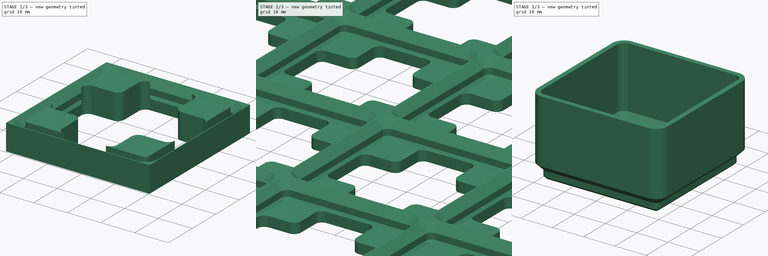
[diagram: build sequence overview — one tinted view per stage of 3, left to right]
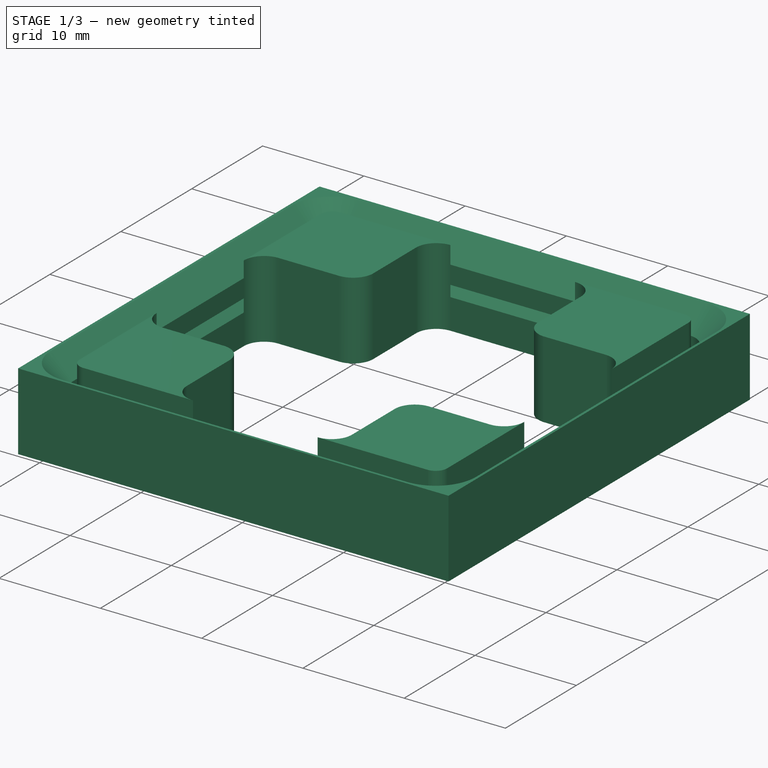
[diagram: stage 1 of 3 — iso view after this stage's code; geometry added in this stage tinted green]
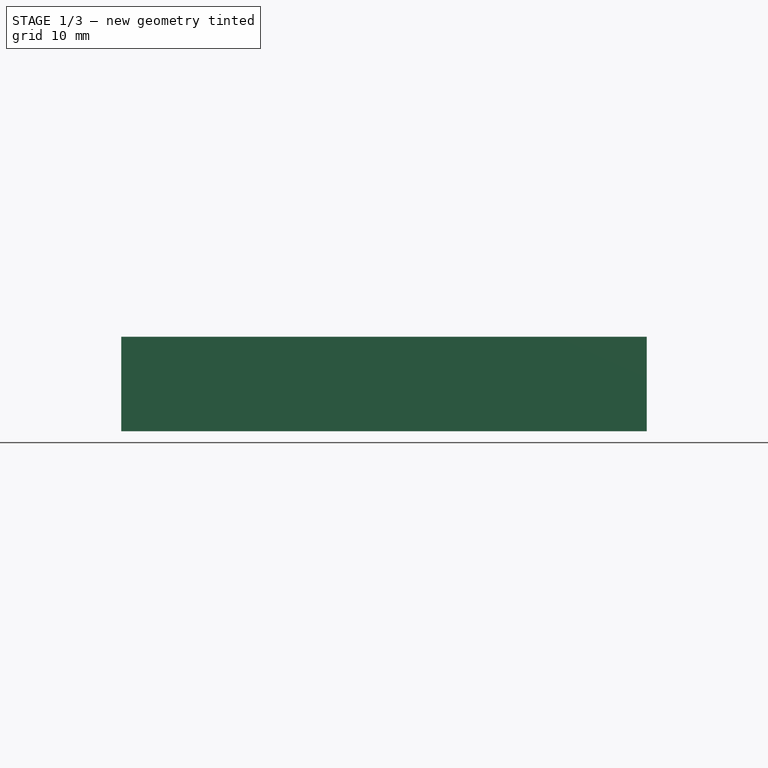
[diagram: stage 1 of 3 — front view after this stage's code; geometry added in this stage tinted green]
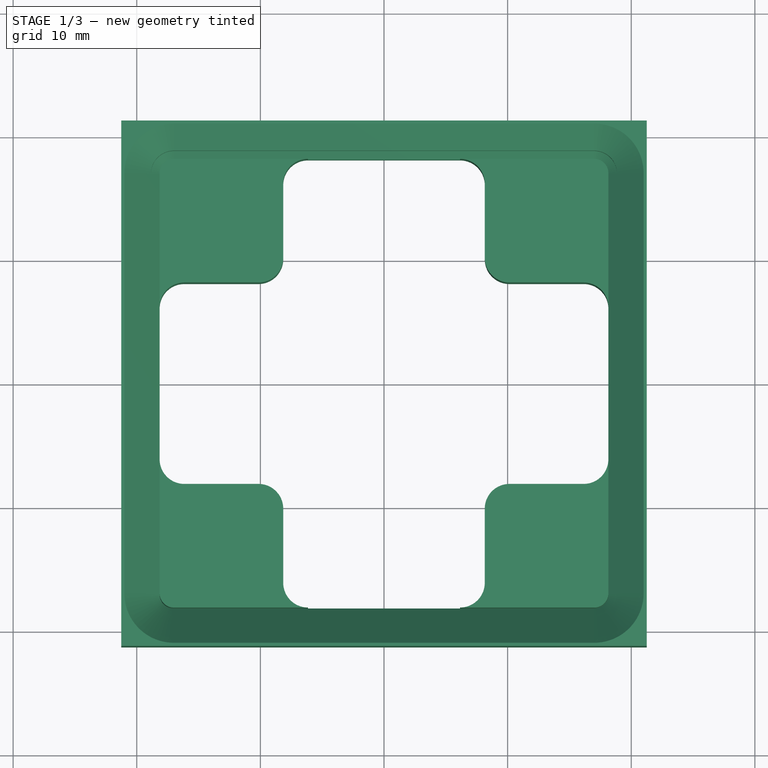
[diagram: stage 1 of 3 — top view after this stage's code; geometry added in this stage tinted green]
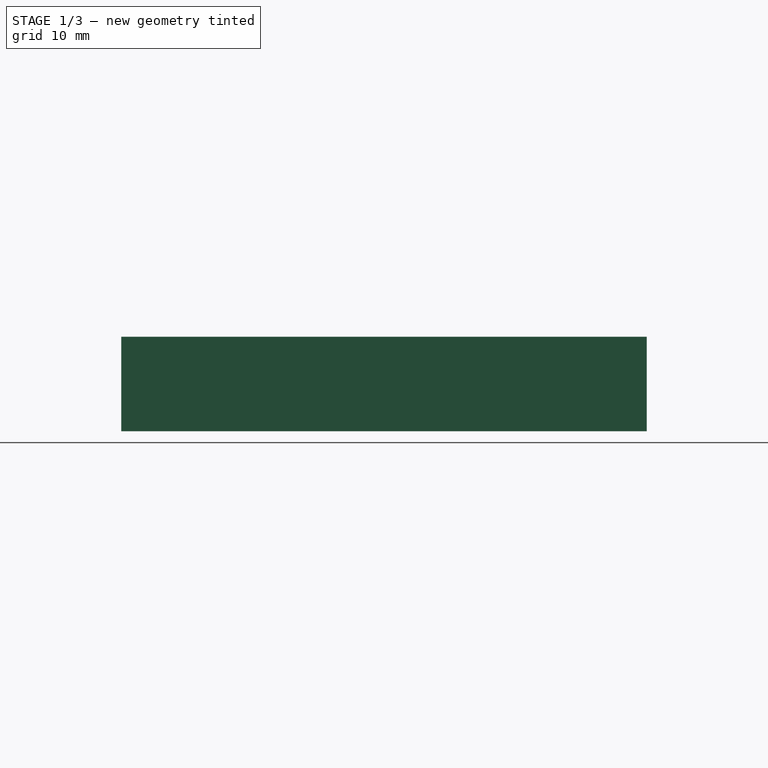
[diagram: stage 1 of 3 — right view after this stage's code; geometry added in this stage tinted green]
FCSTD DOCUMENT  (FreeCAD 1.0R38806 (Git))
Label: GridFinity_002
License: All rights reserved
LicenseURL: http://en.wikipedia.org/wiki/All_rights_reserved
objects: Sketcher::SketchObject×7, PartDesign::Pad×2, PartDesign::Pocket×2, PartDesign::SubtractivePipe×2, PartDesign::LinearPattern×2, PartDesign::Body×2, App::VarSet×1, PartDesign::MultiTransform×1, PartDesign::SubShapeBinder×1, PartDesign::Thickness×1, App::Part×1
note: 44 computed .brp shape members not serialized (recipe doc carries the construction recipe); baked Part::Feature solids carry a one-line shape summary decoded from their .brp

FEATURE [Sketcher::SketchObject] Sketch  label="Sketch_Base_Sweep"
  ArcFitTolerance = 1e-06
  AttachmentSupport = -> [XY_Plane001]
  FullyConstrained = true
  MakeInternals = false
  MapMode = 5
  expr: Constraints[20] = VarSet.Base_Grid_Outer_Radius
  expr: Constraints[21] = VarSet.Grid_Size
  sketch-geometry (10):
    g0: LineSegment StartX=-17 StartY=-21 StartZ=0 EndX=17 EndY=-21 EndZ=0
    g1: LineSegment StartX=21 StartY=-17 StartZ=0 EndX=21 EndY=17 EndZ=0
    g2: LineSegment StartX=17 StartY=21 StartZ=0 EndX=-17 EndY=21 EndZ=0
    g3: LineSegment StartX=-21 StartY=17 StartZ=0 EndX=-21 EndY=-17 EndZ=0
    g4: ArcOfCircle CenterX=-17 CenterY=-17 CenterZ=0 NormalX=0 NormalY=0 NormalZ=1 AngleXU=0 Radius=4 StartAngle=3.14159 EndAngle=4.71239
    g5: ArcOfCircle CenterX=17 CenterY=-17 CenterZ=0 NormalX=0 NormalY=0 NormalZ=1 AngleXU=0 Radius=4 StartAngle=4.71239 EndAngle=6.28319
    g6: ArcOfCircle CenterX=17 CenterY=17 CenterZ=0 NormalX=0 NormalY=0 NormalZ=1 AngleXU=0 Radius=4 StartAngle=4e-16 EndAngle=1.5708
    g7: ArcOfCircle CenterX=-17 CenterY=17 CenterZ=0 NormalX=0 NormalY=0 NormalZ=1 AngleXU=0 Radius=4 StartAngle=1.5708 EndAngle=3.14159
    g8: GeomPoint [constr] X=21 Y=21 Z=0
    g9: GeomPoint [constr] X=0 Y=0 Z=0
  constraints (22):
    c: Tangent(g0,g4) = -1.5708
    c: Tangent(g0,g5) = -1.5708
    c: Tangent(g1,g5) = -1.5708
    c: Tangent(g1,g6) = -1.5708
    c: Tangent(g2,g6) = -1.5708
    c: Tangent(g2,g7) = -1.5708
    c: Tangent(g3,g7) = -1.5708
    c: Tangent(g3,g4) = -1.5708
    c: Horizontal(g0)
    c: Horizontal(g2)
    c: Vertical(g1)
    c: Vertical(g3)
    c: Equal(g4,g5)
    c: Equal(g5,g6)
    c: Equal(g6,g7)
    c: Symmetric(g2,g0,g9)
    c: PointOnObject(g8,g1)
    c: PointOnObject(g8,g2)
    c: Coincident(g9,g-1)
    c: Equal(g1,g2)
    c: Radius(g7) = 4
    c: DistanceX(g3,g1) = 42
FEATURE [App::VarSet] VarSet
  Base_Base_Bottom_Height = 3
  Base_Base_GridX = 4
  Base_Base_GridY = 4
  Base_Base_Offset = 42.5
  Base_Base_Profile_Angle = 45
  Base_Base_Profile_Lower = 0.7
  Base_Base_Profile_Middle = 1.8
  Base_Base_Profile_Top = 2.15
  Base_Base_Width = 42
  Base_Grid_Offset = 0.5
  Base_Grid_Outer_Radius = 4
  Grid_Size = 42
  expr: Base_Base_Offset = Base_Grid_Offset + Grid_Size
  expr: Base_Base_Width = Grid_Size
FEATURE [Sketcher::SketchObject] Sketch001  label="Sketch_Base_Sweep_Profile"
  ArcFitTolerance = 1e-06
  AttachmentSupport = -> [XZ_Plane001]
  FullyConstrained = true
  MakeInternals = false
  MapMode = 5
  Placement = pos=(0,0,0) rot=(1,0,0;1.5708rad)
  expr: Constraints[11] = VarSet.Grid_Size / 2
  expr: Constraints[12] = VarSet.Base_Base_Profile_Top
  expr: Constraints[13] = VarSet.Base_Base_Profile_Middle
  expr: Constraints[14] = VarSet.Base_Base_Profile_Lower
  expr: Constraints[8] = VarSet.Base_Base_Profile_Angle
  sketch-geometry (5):
    g0: LineSegment StartX=18.15 StartY=4.65 StartZ=0 EndX=21 EndY=4.65 EndZ=0
    g1: LineSegment StartX=21 StartY=4.65 StartZ=0 EndX=18.85 EndY=2.5 EndZ=0
    g2: LineSegment StartX=18.85 StartY=2.5 StartZ=0 EndX=18.85 EndY=0.7 EndZ=0
    g3: LineSegment StartX=18.85 StartY=0.7 StartZ=0 EndX=18.15 EndY=0 EndZ=0
    g4: LineSegment StartX=18.15 StartY=0 StartZ=0 EndX=18.15 EndY=4.65 EndZ=0
  constraints (15):
    c: Horizontal(g0)
    c: Coincident(g0,g1)
    c: Coincident(g1,g2)
    c: Coincident(g2,g3)
    c: Coincident(g3,g4)
    c: Coincident(g4,g0)
    c: Vertical(g4)
    c: Parallel(g3,g1)
    c: Angle(g3,g4) = 0.785398
    c: Horizontal(g3,g-1)
    c: Vertical(g2)
    c: DistanceX(g-1,g0) = 21
    c: DistanceY(g1,g0) = 2.15
    c: DistanceY(g2,g1) = 1.8
    c: DistanceY(g3,g2) = 0.7
FEATURE [Sketcher::SketchObject] Sketch002
  ArcFitTolerance = 1e-06
  AttachmentSupport = -> [XY_Plane001]
  FullyConstrained = true
  MakeInternals = false
  MapMode = 5
  expr: Constraints[11] = VarSet.Base_Base_Offset
  sketch-geometry (5):
    g0: LineSegment StartX=-21.25 StartY=-21.25 StartZ=0 EndX=21.25 EndY=-21.25 EndZ=0
    g1: LineSegment StartX=21.25 StartY=-21.25 StartZ=0 EndX=21.25 EndY=21.25 EndZ=0
    g2: LineSegment StartX=21.25 StartY=21.25 StartZ=0 EndX=-21.25 EndY=21.25 EndZ=0
    g3: LineSegment StartX=-21.25 StartY=21.25 StartZ=0 EndX=-21.25 EndY=-21.25 EndZ=0
    g4: GeomPoint [constr] X=-4e-16 Y=-3e-16 Z=0
  constraints (12):
    c: Coincident(g0,g1)
    c: Coincident(g1,g2)
    c: Coincident(g2,g3)
    c: Coincident(g3,g0)
    c: Horizontal(g0)
    c: Horizontal(g2)
    c: Vertical(g1)
    c: Vertical(g3)
    c: Symmetric(g2,g0,g4)
    c: Coincident(g4,g-1)
    c: Equal(g2,g1)
    c: DistanceX(g2,g2) = 42.5
FEATURE [PartDesign::Pad] Pad
  Direction = (0,0,1)
  Length = 4.65
  Length2 = 3
  Profile = -> Sketch002
  ReferenceAxis = -> Sketch002 [N_Axis]
  Refine = true
  Suppressed = false
  Type = 4
  expr: Length = VarSet.Base_Base_Profile_Lower + VarSet.Base_Base_Profile_Middle + VarSet.Base_Base_Profile_Top
  expr: Length2 = VarSet.Base_Base_Bottom_Height
FEATURE [Sketcher::SketchObject] Sketch003
  ArcFitTolerance = 1e-06
  AttachmentSupport = -> [XY_Plane001]
  ExternalGeometry = -> [Sketch001]
  FullyConstrained = true
  MakeInternals = false
  MapMode = 5
  sketch-geometry (42):
    g0: LineSegment StartX=16.15 StartY=-8.15 StartZ=0 EndX=10.15 EndY=-8.15 EndZ=0
    g1: LineSegment StartX=8.15 StartY=-10.15 StartZ=0 EndX=8.15 EndY=-16.15 EndZ=0
    g2: LineSegment StartX=6.15 StartY=-18.15 StartZ=0 EndX=0 EndY=-18.15 EndZ=0
    g3: LineSegment StartX=18.15 StartY=5e-16 StartZ=0 EndX=18.15 EndY=-6.15 EndZ=0
    g4: ArcOfCircle CenterX=16.15 CenterY=-6.15 CenterZ=0 NormalX=0 NormalY=0 NormalZ=1 AngleXU=0 Radius=2 StartAngle=4.71239 EndAngle=6.28319
    g5: GeomPoint [constr] X=18.15 Y=-8.15 Z=0
    g6: ArcOfCircle CenterX=10.15 CenterY=-10.15 CenterZ=0 NormalX=0 NormalY=0 NormalZ=1 AngleXU=0 Radius=2 StartAngle=1.5708 EndAngle=3.14159
    g7: GeomPoint [constr] X=8.15 Y=-8.15 Z=0
    g8: ArcOfCircle CenterX=6.15 CenterY=-16.15 CenterZ=0 NormalX=0 NormalY=0 NormalZ=1 AngleXU=0 Radius=2 StartAngle=4.71239 EndAngle=6.28319
    g9: GeomPoint [constr] X=8.15 Y=-18.15 Z=0
    g10: LineSegment [constr] StartX=0 StartY=0 StartZ=0 EndX=18.15 EndY=5e-16 EndZ=0
    g11: LineSegment [constr] StartX=0 StartY=0 StartZ=0 EndX=0 EndY=-18.15 EndZ=0
    g12: LineSegment StartX=16.15 StartY=8.15 StartZ=0 EndX=10.15 EndY=8.15 EndZ=0
    g13: LineSegment StartX=8.15 StartY=10.15 StartZ=0 EndX=8.15 EndY=16.15 EndZ=0
    g14: LineSegment StartX=6.15 StartY=18.15 StartZ=0 EndX=-9e-16 EndY=18.15 EndZ=0
    g15: LineSegment StartX=18.15 StartY=5e-16 StartZ=0 EndX=18.15 EndY=6.15 EndZ=0
    g16: ArcOfCircle CenterX=16.15 CenterY=6.15 CenterZ=0 NormalX=0 NormalY=0 NormalZ=1 AngleXU=0 Radius=2 StartAngle=4e-16 EndAngle=1.5708
    g17: GeomPoint [constr] X=18.15 Y=8.15 Z=0
    g18: ArcOfCircle CenterX=10.15 CenterY=10.15 CenterZ=0 NormalX=0 NormalY=0 NormalZ=1 AngleXU=0 Radius=2 StartAngle=3.14159 EndAngle=4.71239
    g19: GeomPoint [constr] X=8.15 Y=8.15 Z=0
    g20: ArcOfCircle CenterX=6.15 CenterY=16.15 CenterZ=0 NormalX=0 NormalY=0 NormalZ=1 AngleXU=0 Radius=2 StartAngle=0 EndAngle=1.5708
    g21: GeomPoint [constr] X=8.15 Y=18.15 Z=0
    g22: LineSegment StartX=-16.15 StartY=-8.15 StartZ=0 EndX=-10.15 EndY=-8.15 EndZ=0
    g23: LineSegment StartX=-8.15 StartY=-10.15 StartZ=0 EndX=-8.15 EndY=-16.15 EndZ=0
    g24: LineSegment StartX=-6.15 StartY=-18.15 StartZ=0 EndX=0 EndY=-18.15 EndZ=0
    g25: LineSegment StartX=-18.15 StartY=5e-16 StartZ=0 EndX=-18.15 EndY=-6.15 EndZ=0
    g26: ArcOfCircle CenterX=-16.15 CenterY=-6.15 CenterZ=0 NormalX=0 NormalY=0 NormalZ=1 AngleXU=0 Radius=2 StartAngle=3.14159 EndAngle=4.71239
    g27: GeomPoint [constr] X=-18.15 Y=-8.15 Z=0
    g28: ArcOfCircle CenterX=-10.15 CenterY=-10.15 CenterZ=0 NormalX=0 NormalY=0 NormalZ=1 AngleXU=0 Radius=2 StartAngle=0 EndAngle=1.5708
    g29: GeomPoint [constr] X=-8.15 Y=-8.15 Z=0
    g30: ArcOfCircle CenterX=-6.15 CenterY=-16.15 CenterZ=0 NormalX=0 NormalY=0 NormalZ=1 AngleXU=0 Radius=2 StartAngle=3.14159 EndAngle=4.71239
    g31: GeomPoint [constr] X=-8.15 Y=-18.15 Z=0
    g32: LineSegment StartX=-16.15 StartY=8.15 StartZ=0 EndX=-10.15 EndY=8.15 EndZ=0
    g33: LineSegment StartX=-8.15 StartY=10.15 StartZ=0 EndX=-8.15 EndY=16.15 EndZ=0
    g34: LineSegment StartX=-6.15 StartY=18.15 StartZ=0 EndX=0 EndY=18.15 EndZ=0
    g35: LineSegment StartX=-18.15 StartY=-5e-16 StartZ=0 EndX=-18.15 EndY=6.15 EndZ=0
    g36: ArcOfCircle CenterX=-16.15 CenterY=6.15 CenterZ=0 NormalX=0 NormalY=0 NormalZ=1 AngleXU=0 Radius=2 StartAngle=1.5708 EndAngle=3.14159
    g37: GeomPoint [constr] X=-18.15 Y=8.15 Z=0
    g38: ArcOfCircle CenterX=-10.15 CenterY=10.15 CenterZ=0 NormalX=0 NormalY=0 NormalZ=1 AngleXU=0 Radius=2 StartAngle=4.71239 EndAngle=6.28319
    g39: GeomPoint [constr] X=-8.15 Y=8.15 Z=0
    g40: ArcOfCircle CenterX=-6.15 CenterY=16.15 CenterZ=0 NormalX=0 NormalY=0 NormalZ=1 AngleXU=0 Radius=2 StartAngle=1.5708 EndAngle=3.14159
    g41: GeomPoint [constr] X=-8.15 Y=18.15 Z=0
  constraints (108):
    c: Horizontal(g0)
    c: Vertical(g1)
    c: Horizontal(g2)
    c: PointOnObject(g2,g-2)
    c: Coincident(g3,g-3)
    c: Vertical(g3)
    c: DistanceX(g7,g5) = 10
    c: PointOnObject(g5,g3)
    c: PointOnObject(g5,g0)
    c: Tangent(g3,g4) = 1.5708
    c: Tangent(g0,g4) = 1.5708
    c: PointOnObject(g7,g0)
    c: PointOnObject(g7,g1)
    c: Tangent(g0,g6) = -1.5708
    c: Tangent(g1,g6) = -1.5708
    c: PointOnObject(g9,g1)
    c: PointOnObject(g9,g2)
    c: Tangent(g1,g8) = 1.5708
    c: Tangent(g2,g8) = 1.5708
    c: Equal(g8,g6)
    c: Equal(g6,g4)
    c: Radius(g6) = 2
    c: Coincident(g10,g-1)
    c: Coincident(g10,g3)
    c: Coincident(g11,g10)
    c: Coincident(g11,g2)
    c: Equal(g11,g10)
    c: Equal(g3,g2)
    c: Block(g2)
    c: Block(g8)
    c: Block(g1)
    c: Block(g6)
    c: Block(g0)
    c: Block(g4)
    c: Block(g3)
    c: PointOnObject(g17,g15)
    c: PointOnObject(g17,g12)
    c: Tangent(g15,g16) = -1.5708
    c: Tangent(g12,g16) = -1.5708
    c: PointOnObject(g19,g12)
    c: PointOnObject(g19,g13)
    c: Tangent(g12,g18) = 1.5708
    c: Tangent(g13,g18) = 1.5708
    c: PointOnObject(g21,g13)
    c: PointOnObject(g21,g14)
    c: Tangent(g13,g20) = -1.5708
    c: Tangent(g14,g20) = -1.5708
    c: Equal(g20,g18)
    c: Equal(g18,g16)
    c: Radius(g18) = 2
    c: Equal(g15,g14)
    c: Block(g14)
    c: Block(g20)
    c: Block(g13)
    c: Block(g18)
    c: Block(g12)
    c: Block(g16)
    c: Block(g15)
    c: PointOnObject(g27,g25)
    c: PointOnObject(g27,g22)
    c: Tangent(g25,g26) = -1.5708
    c: Tangent(g22,g26) = -1.5708
    c: PointOnObject(g29,g22)
    c: PointOnObject(g29,g23)
    c: Tangent(g22,g28) = 1.5708
    c: Tangent(g23,g28) = 1.5708
    c: PointOnObject(g31,g23)
    c: PointOnObject(g31,g24)
    c: Tangent(g23,g30) = -1.5708
    c: Tangent(g24,g30) = -1.5708
    c: Equal(g30,g28)
    c: Equal(g28,g26)
    c: Radius(g28) = 2
    c: Equal(g25,g24)
    c: Block(g24)
    c: Block(g30)
    c: Block(g23)
    c: Block(g28)
    c: Block(g22)
    c: Block(g26)
    c: Block(g25)
    c: Horizontal(g32)
    c: Vertical(g33)
    c: Horizontal(g34)
    c: Vertical(g35)
    c: PointOnObject(g37,g35)
    c: PointOnObject(g37,g32)
    c: Tangent(g35,g36) = 1.5708
    c: Tangent(g32,g36) = 1.5708
    c: PointOnObject(g39,g32)
    c: PointOnObject(g39,g33)
    c: Tangent(g32,g38) = -1.5708
    c: Tangent(g33,g38) = -1.5708
    c: PointOnObject(g41,g33)
    c: PointOnObject(g41,g34)
    c: Tangent(g33,g40) = 1.5708
    c: Tangent(g34,g40) = 1.5708
    c: Equal(g40,g38)
    c: Equal(g38,g36)
    c: Radius(g38) = 2
    c: Equal(g35,g34)
    c: Block(g34)
    c: Block(g40)
    c: Block(g33)
    c: Block(g38)
    c: Block(g32)
    c: Block(g36)
    c: Block(g35)
FEATURE [PartDesign::Pocket] Pocket
  BaseFeature = -> Pad
  Direction = (0,0,-1)
  Length = 5
  Length2 = 5
  Midplane = true
  Profile = -> Sketch003
  ReferenceAxis = -> Sketch003 [N_Axis]
  Refine = true
  Suppressed = false
  Type = 1
FEATURE [Sketcher::SketchObject] Sketch004
  ArcFitTolerance = 1e-06
  AttachmentSupport = -> [XY_Plane001]
  ExternalGeometry = -> [Sketch001,Sketch]
  FullyConstrained = true
  MakeInternals = false
  MapMode = 5
  sketch-geometry (10):
    g0: LineSegment StartX=-17 StartY=-18.15 StartZ=0 EndX=17 EndY=-18.15 EndZ=0
    g1: LineSegment StartX=18.15 StartY=-17 StartZ=0 EndX=18.15 EndY=17 EndZ=0
    g2: LineSegment StartX=17 StartY=18.15 StartZ=0 EndX=-17 EndY=18.15 EndZ=0
    g3: LineSegment StartX=-18.15 StartY=17 StartZ=0 EndX=-18.15 EndY=-17 EndZ=0
    g4: ArcOfCircle CenterX=-17 CenterY=-17 CenterZ=0 NormalX=0 NormalY=0 NormalZ=1 AngleXU=0 Radius=1.15 StartAngle=3.14159 EndAngle=4.71239
    g5: ArcOfCircle CenterX=17 CenterY=-17 CenterZ=0 NormalX=0 NormalY=0 NormalZ=1 AngleXU=0 Radius=1.15 StartAngle=4.71239 EndAngle=6.28319
    g6: ArcOfCircle CenterX=17 CenterY=17 CenterZ=0 NormalX=0 NormalY=0 NormalZ=1 AngleXU=0 Radius=1.15 StartAngle=0 EndAngle=1.5708
    g7: ArcOfCircle CenterX=-17 CenterY=17 CenterZ=0 NormalX=0 NormalY=0 NormalZ=1 AngleXU=0 Radius=1.15 StartAngle=1.5708 EndAngle=3.14159
    g8: GeomPoint [constr] X=18.15 Y=18.15 Z=0
    g9: GeomPoint [constr] X=0 Y=0 Z=0
  constraints (21):
    c: Tangent(g0,g4) = -1.5708
    c: Tangent(g0,g5) = -1.5708
    c: Tangent(g1,g5) = -1.5708
    c: Tangent(g1,g6) = -1.5708
    c: Tangent(g2,g6) = -1.5708
    c: Tangent(g2,g7) = -1.5708
    c: Tangent(g3,g7) = -1.5708
    c: Tangent(g3,g4) = -1.5708
    c: Horizontal(g0)
    c: Horizontal(g2)
    c: Vertical(g1)
    c: Vertical(g3)
    c: Equal(g4,g5)
    c: Equal(g6,g7)
    c: Symmetric(g2,g0,g9)
    c: PointOnObject(g8,g1)
    c: PointOnObject(g8,g2)
    c: Coincident(g9,g-1)
    c: Symmetric(g1,g1,g-3)
    c: Radius(g7) = 1.15
    c: Coincident(g7,g-4)
FEATURE [PartDesign::SubtractivePipe] SubtractivePipe
  AuxilleryCurvelinear = true
  AuxillerySpineTangent = false
  BaseFeature = -> Pocket
  Binormal = (0,0,0)
  Mode = 0
  Profile = -> Sketch001
  Refine = true
  Spine = -> Sketch
  SpineTangent = false
  Suppressed = false
  Transformation = 0
  Transition = 0
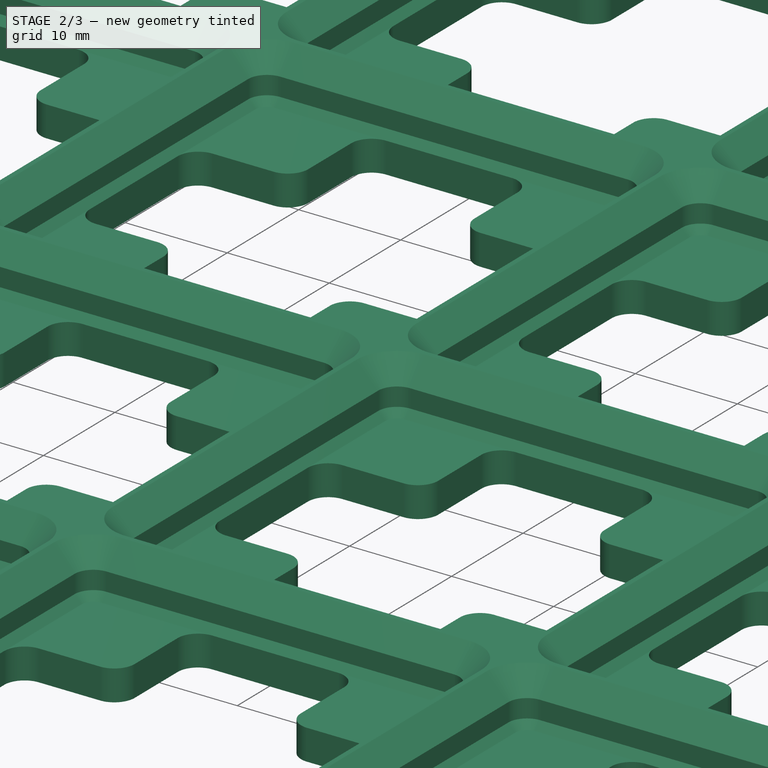
[diagram: stage 2 of 3 — iso view after this stage's code; geometry added in this stage tinted green]
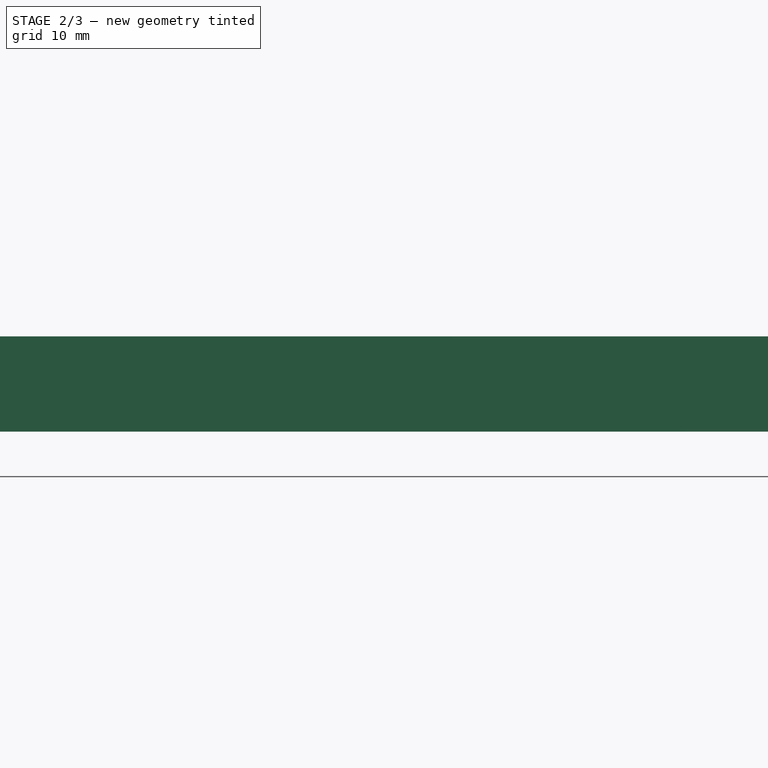
[diagram: stage 2 of 3 — front view after this stage's code; geometry added in this stage tinted green]
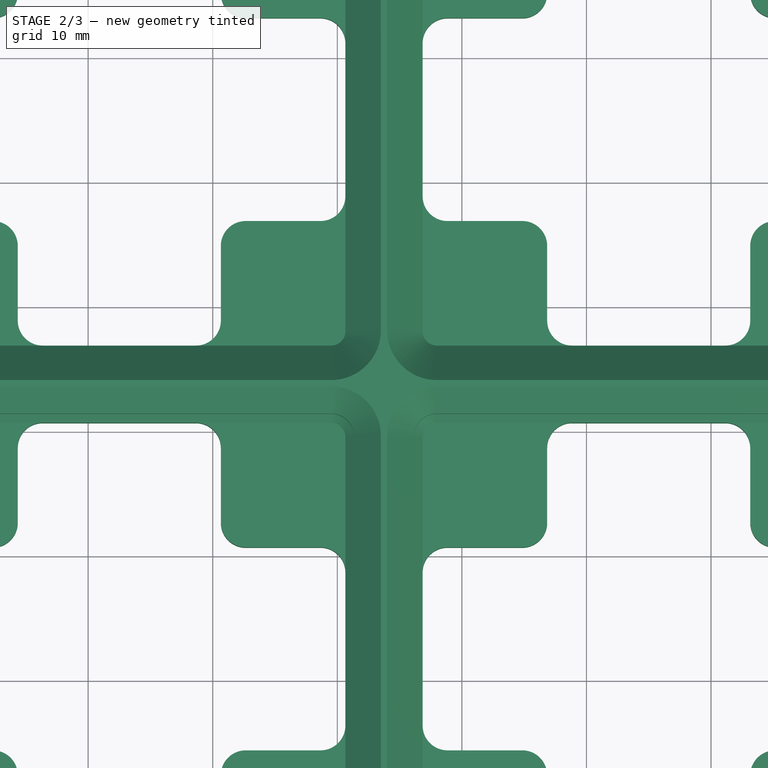
[diagram: stage 2 of 3 — top view after this stage's code; geometry added in this stage tinted green]
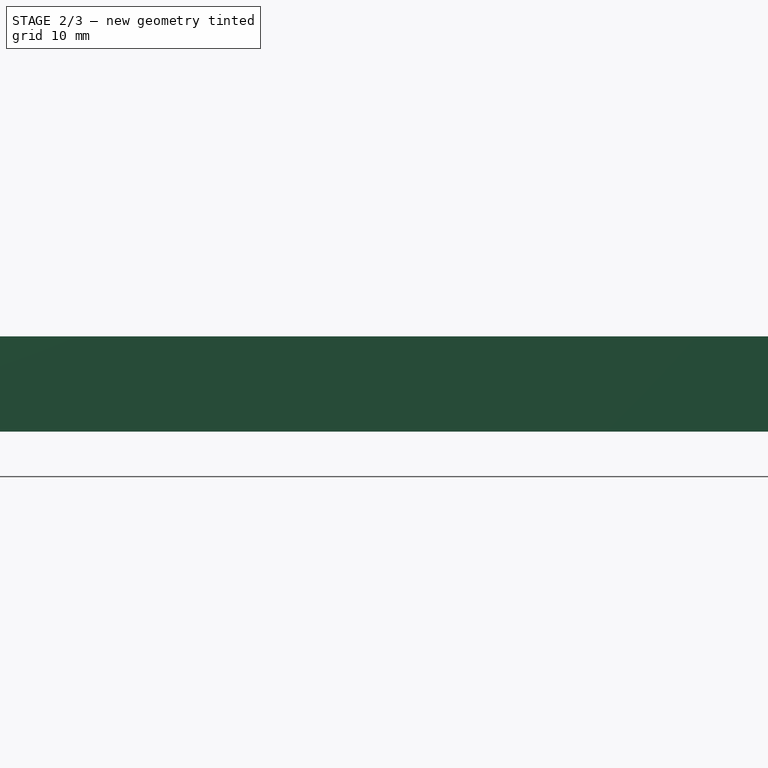
[diagram: stage 2 of 3 — right view after this stage's code; geometry added in this stage tinted green]
FEATURE [PartDesign::Pocket] Pocket001
  BaseFeature = -> SubtractivePipe
  Direction = (0,0,-1)
  Length = 5
  Length2 = 5
  Profile = -> Sketch004
  ReferenceAxis = -> Sketch004 [N_Axis]
  Refine = true
  Reversed = true
  Suppressed = false
  Type = 1
FEATURE [PartDesign::LinearPattern] LinearPattern
  Direction = -> X_Axis001
  Length = 127.5
  Mode = 1
  Occurrences = 4
  Offset = 42.5
  Refine = true
  Suppressed = false
  TransformMode = 0
  expr: Occurrences = VarSet.Base_Base_GridX
  expr: Offset = VarSet.Base_Base_Offset
FEATURE [PartDesign::LinearPattern] LinearPattern001
  Direction = -> Y_Axis001
  Length = 127.5
  Mode = 1
  Occurrences = 4
  Offset = 42.5
  Refine = true
  Suppressed = false
  TransformMode = 0
  expr: Occurrences = VarSet.Base_Base_GridY
  expr: Offset = VarSet.Base_Base_Offset
FEATURE [PartDesign::MultiTransform] MultiTransform
  BaseFeature = -> Pocket001
  Originals = -> [Pad,SubtractivePipe,Pocket001,Pocket]
  Refine = true
  Suppressed = false
  TransformMode = 0
  Transformations = -> [LinearPattern,LinearPattern001]
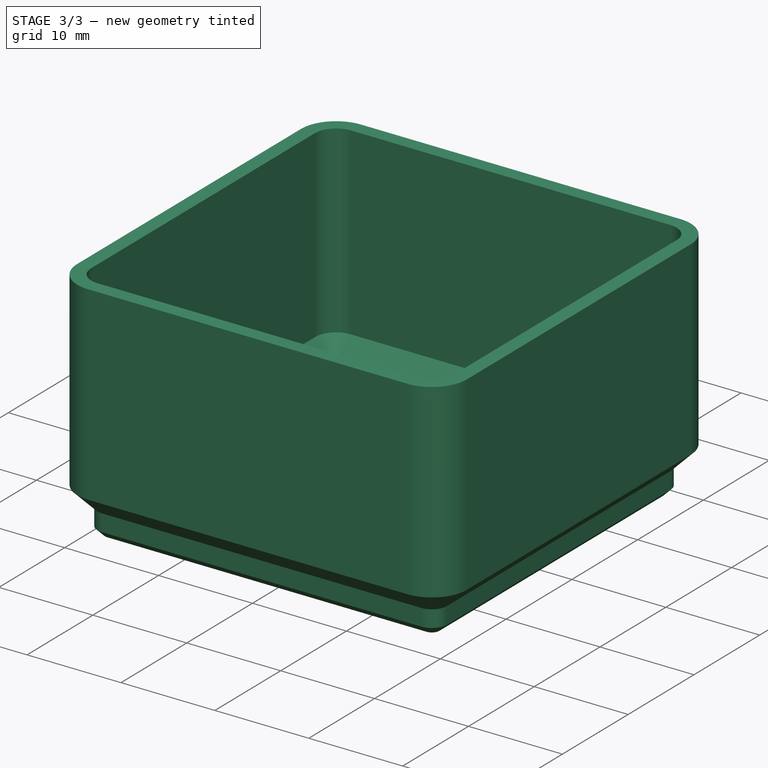
[diagram: stage 3 of 3 — iso view after this stage's code; geometry added in this stage tinted green]
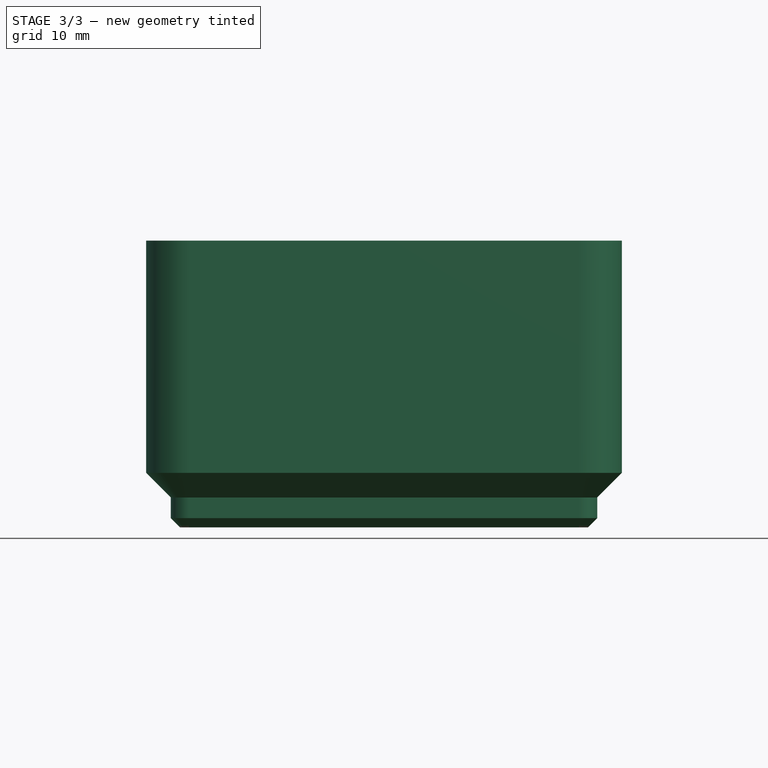
[diagram: stage 3 of 3 — front view after this stage's code; geometry added in this stage tinted green]
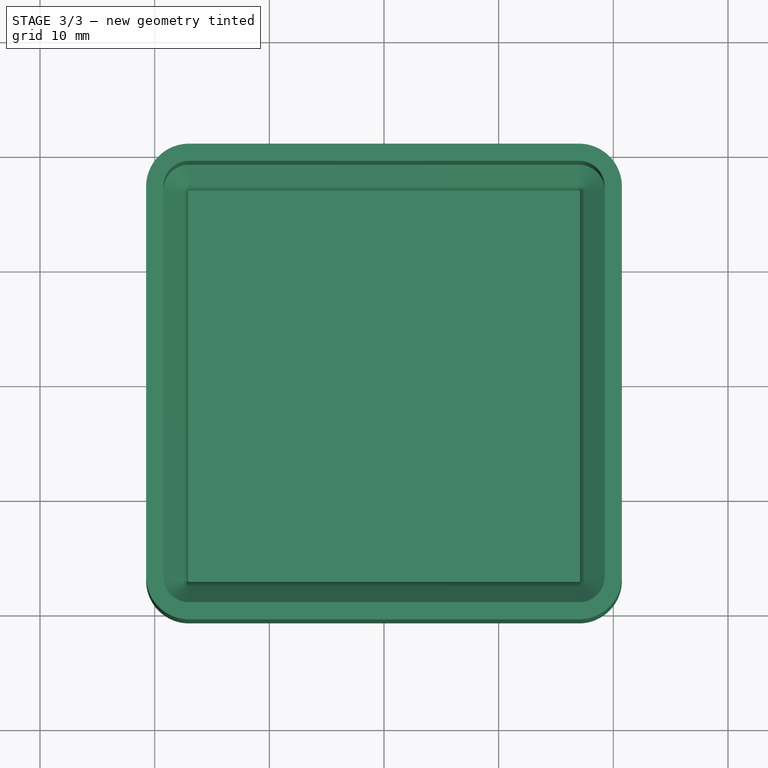
[diagram: stage 3 of 3 — top view after this stage's code; geometry added in this stage tinted green]
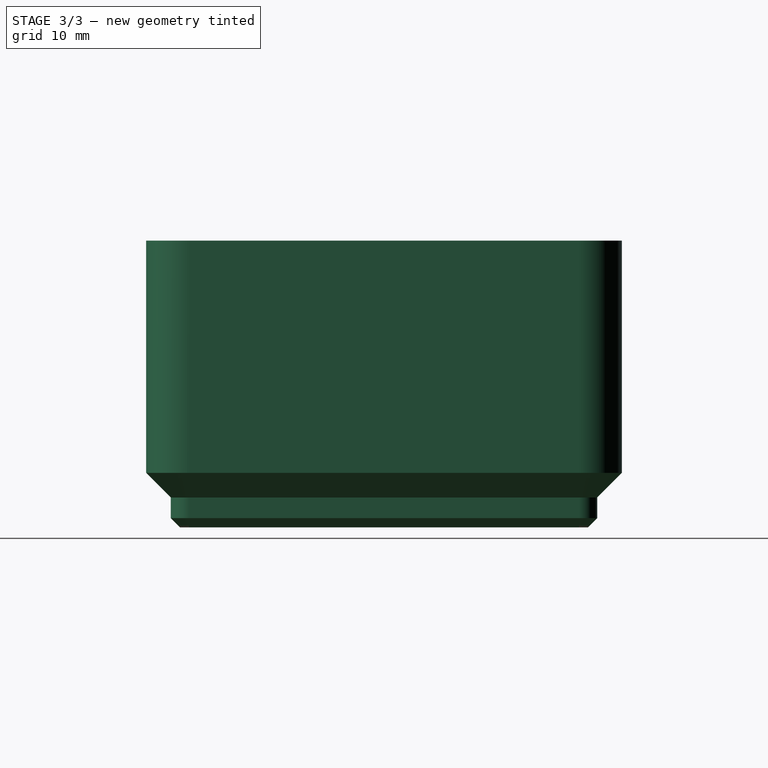
[diagram: stage 3 of 3 — right view after this stage's code; geometry added in this stage tinted green]
FEATURE [PartDesign::Body] Body
  AllowCompound = true
  Group = -> [VarSet,Sketch,Sketch001,Sketch002,Pad,Sketch003,Pocket,Sketch004,SubtractivePipe,LinearPattern,LinearPattern001,Pocket001,MultiTransform]
  Origin = -> Origin001
  Tip = -> SubtractivePipe
FEATURE [Sketcher::SketchObject] Sketch005
  ArcFitTolerance = 1e-06
  AttachmentSupport = -> [XY_Plane002]
  FullyConstrained = true
  MakeInternals = false
  MapMode = 5
  expr: Constraints[19] = VarSet.Grid_Size - VarSet.Base_Grid_Offset
  sketch-geometry (10):
    g0: LineSegment StartX=-17 StartY=-20.75 StartZ=0 EndX=17 EndY=-20.75 EndZ=0
    g1: LineSegment StartX=20.75 StartY=-17 StartZ=0 EndX=20.75 EndY=17 EndZ=0
    g2: LineSegment StartX=17 StartY=20.75 StartZ=0 EndX=-17 EndY=20.75 EndZ=0
    g3: LineSegment StartX=-20.75 StartY=17 StartZ=0 EndX=-20.75 EndY=-17 EndZ=0
    g4: ArcOfCircle CenterX=-17 CenterY=-17 CenterZ=0 NormalX=0 NormalY=0 NormalZ=1 AngleXU=0 Radius=3.75 StartAngle=3.14159 EndAngle=4.71239
    g5: ArcOfCircle CenterX=17 CenterY=-17 CenterZ=0 NormalX=0 NormalY=0 NormalZ=1 AngleXU=0 Radius=3.75 StartAngle=4.71239 EndAngle=6.28319
    g6: ArcOfCircle CenterX=17 CenterY=17 CenterZ=0 NormalX=0 NormalY=0 NormalZ=1 AngleXU=0 Radius=3.75 StartAngle=5e-16 EndAngle=1.5708
    g7: ArcOfCircle CenterX=-17 CenterY=17 CenterZ=0 NormalX=0 NormalY=0 NormalZ=1 AngleXU=0 Radius=3.75 StartAngle=1.5708 EndAngle=3.14159
    g8: GeomPoint [constr] X=20.75 Y=20.75 Z=0
    g9: GeomPoint [constr] X=0 Y=0 Z=0
  constraints (22):
    c: Tangent(g0,g4) = -1.5708
    c: Tangent(g0,g5) = -1.5708
    c: Tangent(g1,g5) = -1.5708
    c: Tangent(g1,g6) = -1.5708
    c: Tangent(g2,g6) = -1.5708
    c: Tangent(g2,g7) = -1.5708
    c: Tangent(g3,g7) = -1.5708
    c: Tangent(g3,g4) = -1.5708
    c: Horizontal(g0)
    c: Horizontal(g2)
    c: Vertical(g1)
    c: Vertical(g3)
    c: Equal(g4,g5)
    c: Equal(g5,g6)
    c: Equal(g6,g7)
    c: Symmetric(g2,g0,g9)
    c: PointOnObject(g8,g1)
    c: PointOnObject(g8,g2)
    c: Coincident(g9,g-1)
    c: DistanceX(g3,g1) = 41.5
    c: Radius(g5) = 3.75
    c: Equal(g0,g3)
FEATURE [PartDesign::Pad] Pad001
  Direction = (0,0,1)
  Length = 25
  Length2 = 10
  Profile = -> Sketch005
  ReferenceAxis = -> Sketch005 [N_Axis]
  Refine = true
  Suppressed = false
  Type = 0
FEATURE [PartDesign::SubShapeBinder] Binder
  BindCopyOnChange = 0
  BindMode = 0
  ClaimChildren = false
  Context = -> Part [Body001.Binder.]
  Fuse = false
  MakeFace = true
  OffsetFill = false
  OffsetIntersection = false
  OffsetJoinType = 0
  OffsetOpenResult = false
  PartialLoad = false
  Refine = true
  Relative = true
  Support = -> [Body[Sketch001.]]
  _Version = 2
FEATURE [Sketcher::SketchObject] Sketch006
  ArcFitTolerance = 1e-06
  AttachmentSupport = -> [XZ_Plane002]
  ExternalGeometry = -> [Binder,Sketch005]
  FullyConstrained = false
  MakeInternals = false
  MapMode = 5
  Placement = pos=(0,0,0) rot=(1,0,0;1.5708rad)
  sketch-geometry (7):
    g0: LineSegment StartX=20.7464 StartY=4.75 StartZ=0 EndX=18.5964 EndY=2.6 EndZ=0
    g1: LineSegment StartX=18.5964 StartY=2.6 StartZ=0 EndX=18.5964 EndY=0.8 EndZ=0
    g2: LineSegment StartX=18.5964 StartY=0.8 StartZ=0 EndX=17.7964 EndY=-4.4e-15 EndZ=0
    g3: LineSegment StartX=17.7964 StartY=-4.4e-15 StartZ=0 EndX=21.2795 EndY=-4.4e-15 EndZ=0
    g4: LineSegment [constr] StartX=19.3601 StartY=3.36368 StartZ=0 EndX=19.5369 EndY=3.18691 EndZ=0
    g5: LineSegment StartX=21.2795 StartY=-4.4e-15 StartZ=0 EndX=21.2795 EndY=4.75 EndZ=0
    g6: LineSegment StartX=21.2795 StartY=4.75 StartZ=0 EndX=20.7464 EndY=4.75 EndZ=0
  constraints (21):
    c: Coincident(g0,g1)
    c: Vertical(g1)
    c: Coincident(g1,g2)
    c: Coincident(g2,g3)
    c: Horizontal(g3)
    c: Parallel(g0,g-3)
    c: Parallel(g2,g0)
    c: DistanceY(g-5,g1) = 0.8
    c: DistanceY(g1,g0) = 1.8
    c: DistanceY(g0,g0) = 2.15
    c: PointOnObject(g4,g0)
    c: PointOnObject(g4,g-3)
    c: Distance(g4,g4) = 0.25
    c: PointOnObject(g2,g-5)
    c: Perpendicular(g0,g4)
    c: DistanceX(g2,g3) = 3.48307
    c: Coincident(g3,g5)
    c: Coincident(g5,g6)
    c: Coincident(g6,g0)
    c: Horizontal(g6)
    c: Vertical(g5)
FEATURE [PartDesign::SubtractivePipe] SubtractivePipe001
  AuxilleryCurvelinear = true
  AuxillerySpineTangent = false
  BaseFeature = -> Pad001
  Binormal = (0,0,0)
  Mode = 0
  Profile = -> Sketch006
  Refine = true
  Spine = -> Sketch005
  SpineTangent = false
  Suppressed = false
  Transformation = 0
  Transition = 0
FEATURE [PartDesign::Thickness] Thickness
  Base = -> SubtractivePipe001 [Face29]
  BaseFeature = -> SubtractivePipe001
  Intersection = true
  Join = 0
  Mode = 0
  Refine = true
  Reversed = true
  SupportTransform = false
  Suppressed = false
  Value = 1.5
FEATURE [PartDesign::Body] Body001
  AllowCompound = true
  Group = -> [Sketch005,Pad001,Binder,Sketch006,SubtractivePipe001,Thickness]
  Origin = -> Origin002
  Tip = -> Thickness
FEATURE [App::Part] Part
  Group = -> [Body,Body001]
  Origin = -> Origin
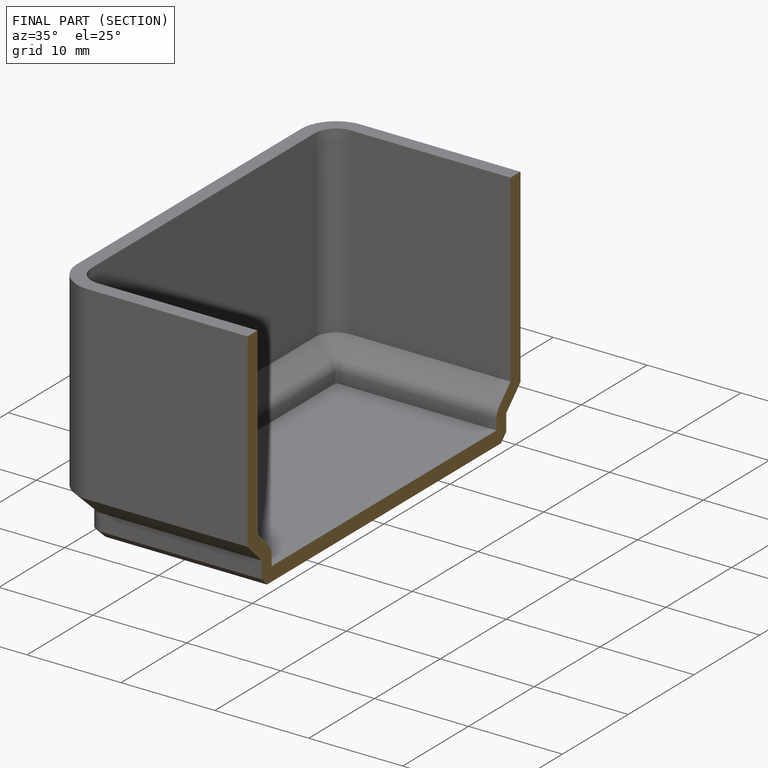
[diagram: finished part — half-section view (interior)]
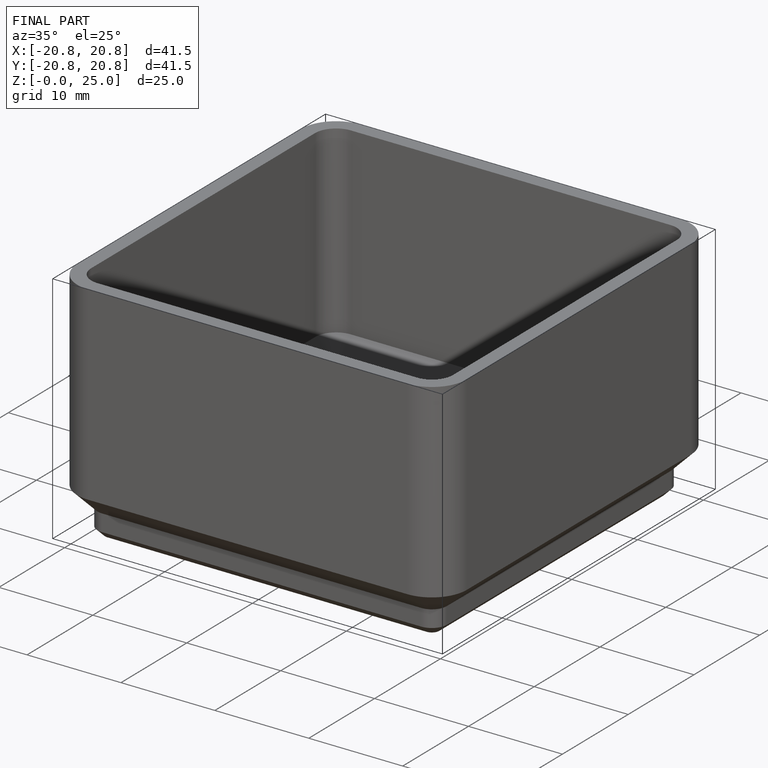
[diagram: finished part — iso view with bounding-box wireframe]
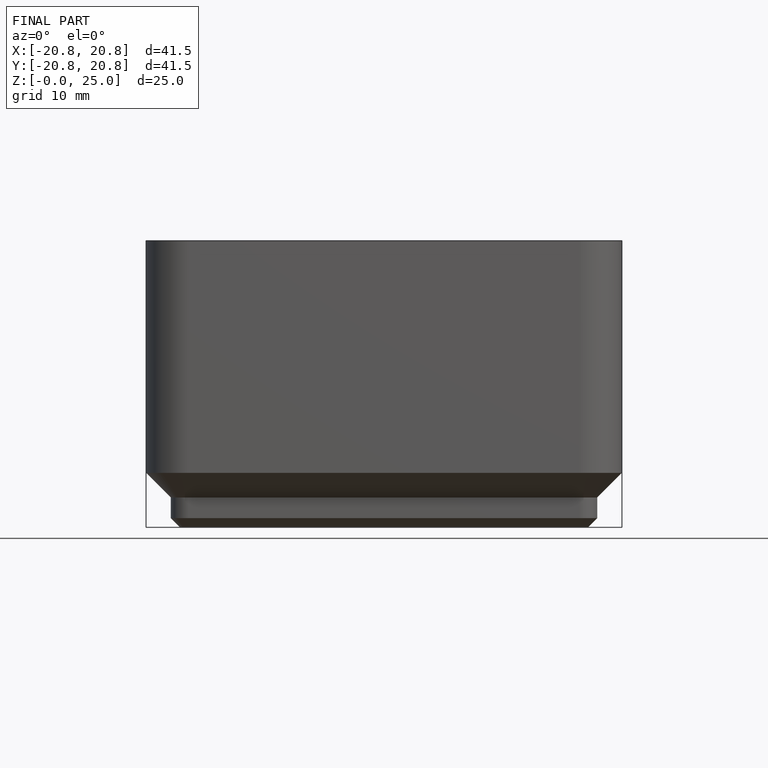
[diagram: finished part — front view with bounding-box wireframe]
